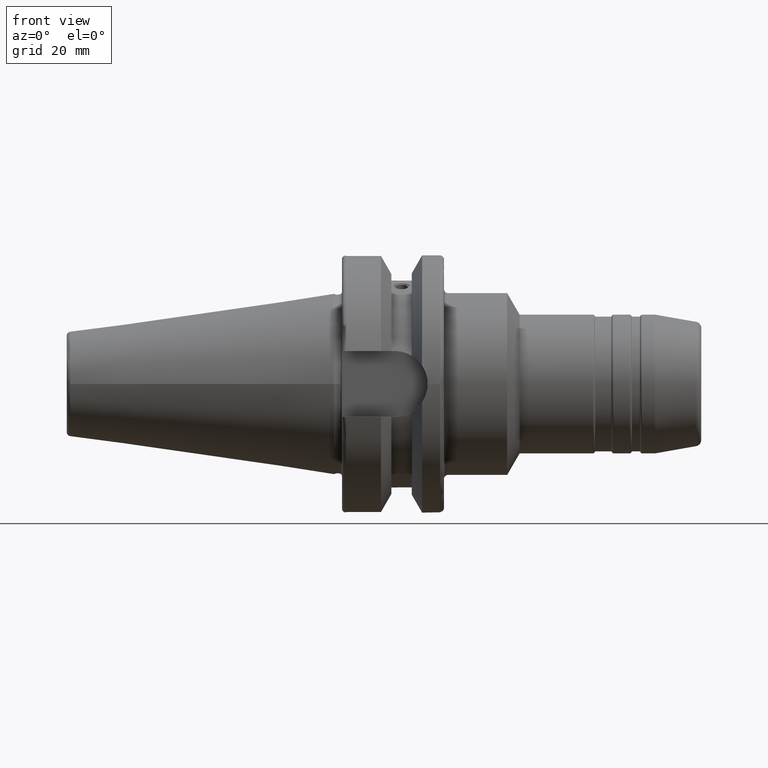
[diagram: clean part render]
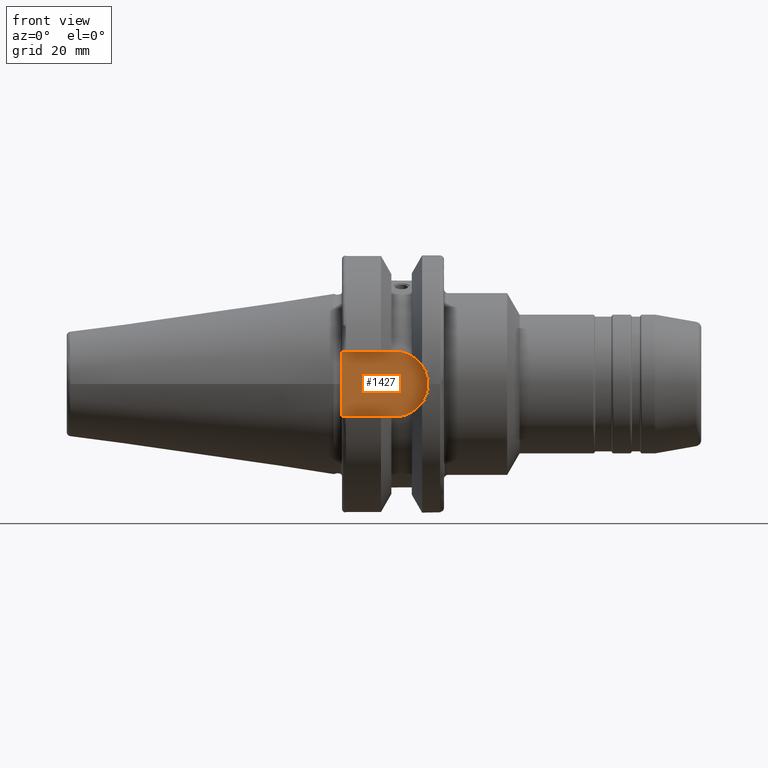
[diagram: same view with one face highlighted and labeled with its STEP entity id]
A machine part, front view. The second image highlights one B-rep face of the part: STEP entity #1427.
In plain terms, the highlighted planar face has unit normal (0, 1, 0).
Its self-contained STEP definition (entity closure, byte-faithful):
#47=PLANE('',#1615);
#163=FACE_OUTER_BOUND('',#260,.T.);
#260=EDGE_LOOP('',(#1170,#1171,#1172,#1173));
#367=LINE('',#2627,#438);
#369=LINE('',#2632,#440);
#373=LINE('',#2654,#444);
#438=VECTOR('',#1991,10.);
#440=VECTOR('',#1995,10.);
#444=VECTOR('',#2001,10.);
#525=CIRCLE('',#1612,8.05);
#645=VERTEX_POINT('',#2598);
#646=VERTEX_POINT('',#2600);
#652=VERTEX_POINT('',#2625);
#654=VERTEX_POINT('',#2631);
#826=EDGE_CURVE('',#645,#646,#525,.T.);
#834=EDGE_CURVE('',#652,#645,#367,.T.);
#836=EDGE_CURVE('',#646,#654,#369,.T.);
#842=EDGE_CURVE('',#654,#652,#373,.T.);
#1170=ORIENTED_EDGE('',*,*,#836,.F.);
#1171=ORIENTED_EDGE('',*,*,#826,.F.);
#1172=ORIENTED_EDGE('',*,*,#834,.F.);
#1173=ORIENTED_EDGE('',*,*,#842,.F.);
#1427=ADVANCED_FACE('',(#163),#47,.F.);
#1612=AXIS2_PLACEMENT_3D('',#2601,#1982,#1983);
#1615=AXIS2_PLACEMENT_3D('',#2653,#1999,#2000);
#1982=DIRECTION('center_axis',(0.,1.,0.));
#1983=DIRECTION('ref_axis',(0.,0.,1.));
#1991=DIRECTION('',(1.,0.,8.57315076930623E-17));
#1995=DIRECTION('',(-1.,0.,-8.57315076930623E-17));
#1999=DIRECTION('center_axis',(0.,1.,0.));
#2000=DIRECTION('ref_axis',(0.,0.,1.));
#2001=DIRECTION('',(0.,0.,1.));
#2598=CARTESIAN_POINT('',(14.95,-22.6,8.05));
#2600=CARTESIAN_POINT('',(14.95,-22.6,-8.05));
#2601=CARTESIAN_POINT('Origin',(14.95,-22.6,0.));
#2625=CARTESIAN_POINT('',(1.99999999999999,-22.6,8.05));
#2627=CARTESIAN_POINT('',(1.99999999999999,-22.6,8.05));
#2631=CARTESIAN_POINT('',(1.99999999999999,-22.6,-8.05));
#2632=CARTESIAN_POINT('',(14.95,-22.6,-8.05));
#2653=CARTESIAN_POINT('Origin',(12.5,-22.6,0.));
#2654=CARTESIAN_POINT('',(1.99999999999999,-22.6,0.));